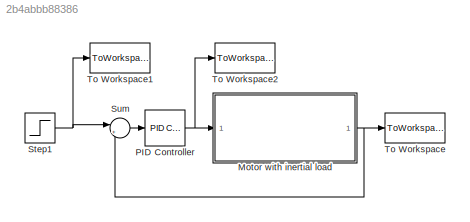
MODEL slx_2b4abbb88386
KIND model
CONFIG AbsTol = auto
CONFIG EnableMultiTasking = off
CONFIG FixedStep = auto
CONFIG MaxStep = auto
CONFIG MinStep = auto
CONFIG RelTol = 1e-3
CONFIG SampleTimeConstraint = Unconstrained
CONFIG Solver = VariableStepAuto
CONFIG SolverName = VariableStepAuto
CONFIG StartTime = 0.0
CONFIG StopTime = 10.0
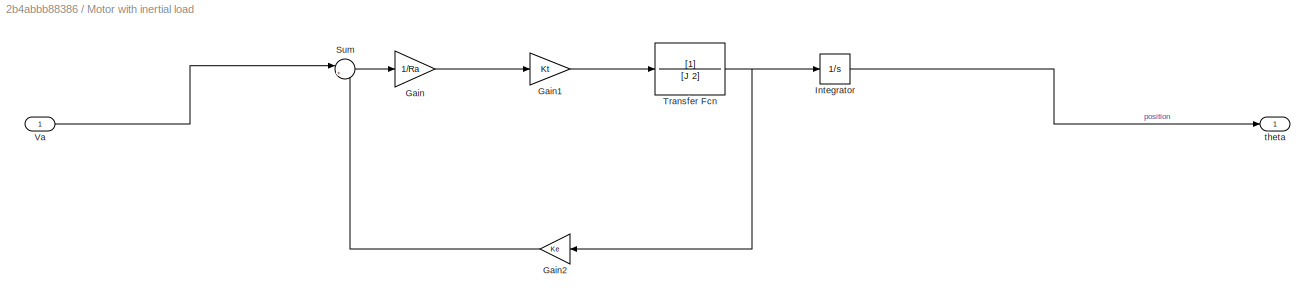
BLOCK [SubSystem] Motor with inertial load
  Ports = [1, 1]
  RequestExecContextInheritance = off
BLOCK [Gain] Motor with inertial load/Gain
  Gain = 1/Ra
  OutDataTypeStr = Inherit: Inherit via internal rule
  ParamDataTypeStr = Inherit: Inherit via internal rule
  SaturateOnIntegerOverflow = off
BLOCK [Gain] Motor with inertial load/Gain1
  Gain = Kt
  OutDataTypeStr = Inherit: Inherit via internal rule
  ParamDataTypeStr = Inherit: Inherit via internal rule
  SaturateOnIntegerOverflow = off
BLOCK [Gain] Motor with inertial load/Gain2
  Gain = Ke
  OutDataTypeStr = Inherit: Inherit via internal rule
  ParamDataTypeStr = Inherit: Inherit via internal rule
  SaturateOnIntegerOverflow = off
BLOCK [Integrator] Motor with inertial load/Integrator
  Ports = [1, 1]
BLOCK [Sum] Motor with inertial load/Sum
  IconShape = round
  InputSameDT = off
  Inputs = |+-
  OutDataTypeStr = Inherit: Inherit via internal rule
  Ports = [2, 1]
  SaturateOnIntegerOverflow = off
BLOCK [TransferFcn] Motor with inertial load/Transfer Fcn
  Denominator = [J 2]
BLOCK [Inport] Motor with inertial load/Va
  IconDisplay = Port number
BLOCK [Outport] Motor with inertial load/theta
  IconDisplay = Port number
BLOCK [Reference] PID Controller  REF=simulink/Continuous/PID Controller
  Ports = [1, 1]
  SourceBlock = simulink/Continuous/PID Controller
  SourceProductBaseCode = SL
  SourceProductName = Simulink
  SourceType = PID 1dof
BLOCK [Step] Step1
  SampleTime = 0
BLOCK [Sum] Sum
  IconShape = round
  InputSameDT = off
  Inputs = |+-
  OutDataTypeStr = Inherit: Inherit via internal rule
  Ports = [2, 1]
  SaturateOnIntegerOverflow = off
BLOCK [ToWorkspace] To Workspace
  FixptAsFi = on
  MaxDataPoints = inf
  Ports = [1]
  SampleTime = -1
  SaveFormat = Timeseries
  VariableName = actualPosition
BLOCK [ToWorkspace] To Workspace1
  FixptAsFi = on
  MaxDataPoints = inf
  Ports = [1]
  SampleTime = -1
  SaveFormat = Timeseries
  VariableName = desiredPosition
BLOCK [ToWorkspace] To Workspace2
  FixptAsFi = on
  MaxDataPoints = inf
  Ports = [1]
  SampleTime = -1
  SaveFormat = Timeseries
  VariableName = Va
LINE Motor with inertial load/Gain1:1 -> Motor with inertial load/Transfer Fcn:1
LINE Motor with inertial load/Gain2:1 -> Motor with inertial load/Sum:2
LINE Motor with inertial load/Gain:1 -> Motor with inertial load/Gain1:1
LINE Motor with inertial load/Integrator:1 -> Motor with inertial load/theta:1
LINE Motor with inertial load/Sum:1 -> Motor with inertial load/Gain:1
NET Motor with inertial load/Transfer Fcn:1 -> Motor with inertial load/Gain2:1, Motor with inertial load/Integrator:1
LINE Motor with inertial load/Va:1 -> Motor with inertial load/Sum:1
NET Motor with inertial load:1 -> Sum:2, To Workspace:1
NET PID Controller:1 -> Motor with inertial load:1, To Workspace2:1
NET Step1:1 -> Sum:1, To Workspace1:1
LINE Sum:1 -> PID Controller:1
note: NET lines group one-source signal fan-out (src -> all destinations, sorted); 1:1 wires keep LINE
